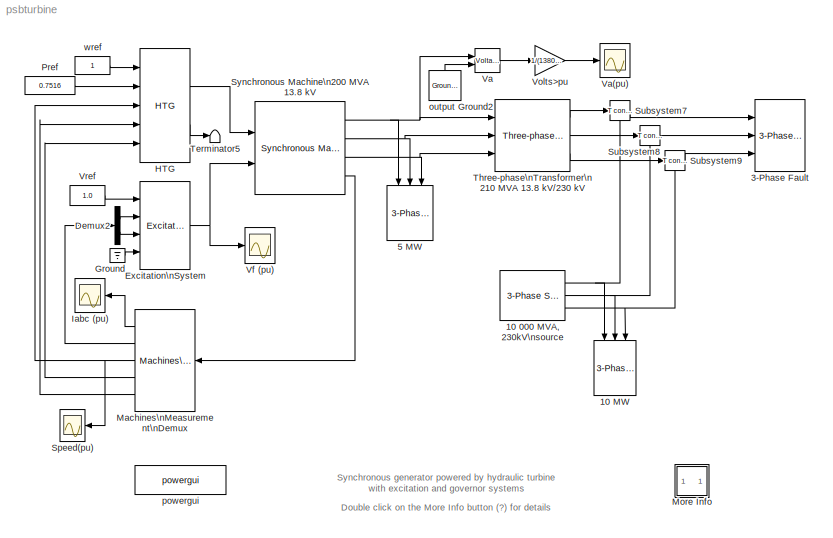
MODEL psbturbine
KIND model
BLOCK [Scope]  Iabc (pu)
  DataFormat = Array
  LimitDataPoints = off
  NumInputPorts = 1
  Ports = [1]
  TickLabels = on
  TimeRange = 0.2
  YMax = 6
BLOCK [Scope]  Speed(pu)
  DataFormat = Array
  LimitDataPoints = off
  NumInputPorts = 1
  Ports = [1]
  SaveName = Pm
  TickLabels = on
  TimeRange = 2
  YMax = 1.02
  YMin = 0.98
BLOCK [Reference] 10 000 MVA, 230kV\nsource  REF=powerlib2/Electrical\nSources/3-Phase Source
  F = 60
  InternalConnection = Yg
  L = 0.0140
  PSBOutputType = 111
  Phi = 0
  Ports = [0, 3]
  Psc = 10000e6
  R = 0.529
  RLoff = on
  SourceBlock = powerlib2/Electrical\nSources/3-Phase Source
  SourceType = 3-Phase Source
  Tag = PoWeRsYsTeMbLoCk
  V = 230e3
  Vbase = 230e3
  XRratio = 10
BLOCK [Reference] 10 MW  REF=powerlib2/Elements/3-Phase\nParallel RLC Load
  P3 = 10e6
  Ports = [3]
  QC3 = 0
  QL3 = 0
  SourceBlock = powerlib2/Elements/3-Phase\nParallel RLC Load
  SourceType = 3-phase parallel RLC load
  Vpp = 230e3
  fn = 60
BLOCK [Reference] 3-Phase Fault  REF=powerlib2/Elements/3-Phase Fault
  Cp = inf
  Ports = [3]
  Rdef = 1e-3
  Rp = inf
  Rt = 1e-3
  SourceBlock = powerlib2/Elements/3-Phase Fault
  SourceType = Three-Phase Fault
  Ts = 0
  comext = off
  init_statext = [1 1 0]
  mesure = None
  sa = on
  sb = on
  sc = on
  st = on
  sw_status = [1 0]
  sw_times = [ 0.1 0.2]
BLOCK [Reference] 5 MW  REF=powerlib2/Elements/3-Phase\nParallel RLC Load
  P3 = 5e6
  Ports = [3]
  QC3 = 0
  QL3 = 0
  SourceBlock = powerlib2/Elements/3-Phase\nParallel RLC Load
  SourceType = 3-phase parallel RLC load
  Vpp = 13.8e3
  fn = 60
BLOCK [Demux] Demux2
  Outputs = 2
  Ports = [1, 2]
BLOCK [Reference] Excitation\nSystem  REF=powerlib2/Machines/Excitation\nSystem
  Ports = [4, 1]
  SourceBlock = powerlib2/Machines/Excitation\nSystem
  SourceType = Excitation System
  damp = [ 0.001, 0.1 ]
  exc = [ 1, 0 ]
  lim = [ -11.5, 11.5, 0 ]
  reg = [ 300, 0.001 ]
  sat = [ 0, 0 ]
  tgr = [ 0, 0 ]
  tr = 20e-3
  v0 = [1,1.0]
BLOCK [Ground] Ground
BLOCK [Reference] HTG  REF=powerlib2/Machines/HTG
  Ports = [5, 2]
  SourceBlock = powerlib2/Machines/HTG
  SourceType = Hydraulic Turbine and Governor
  dref = 0
  gate = [  0.01  0.97518  -0.1  0.1 ]
  hyd = [  0  2.67  ]
  po = 1
  reg = [  0.05  1.163  0.105  0  0.01  ]
  sm = [ 10/3  0.07 ]
BLOCK [Reference] Machines\nMeasurement\nDemux  REF=powerlib2/Machines/Machines\nMeasurement\nDemux
  Ports = [1, 5]
  SourceBlock = powerlib2/Machines/Machines\nMeasurement\nDemux
  SourceType = Machine measurements
  asm1 = on
  asm10 = on
  asm11 = on
  asm2 = on
  asm3 = on
  asm4 = on
  asm5 = on
  asm6 = on
  asm7 = on
  asm8 = on
  asm9 = on
  lastType = 2
  machType = Synchronous
  pmsm1 = on
  pmsm2 = on
  pmsm3 = on
  pmsm4 = on
  pmsm5 = on
  pmsm6 = on
  sm1 = on
  sm10 = on
  sm11 = off
  sm115 = off
  sm12 = off
  sm13 = on
  sm14 = off
  sm2 = off
  sm3 = off
  sm4 = off
  sm5 = off
  sm6 = on
  sm7 = off
  sm8 = on
  sm9 = off
  ssm1 = on
  ssm2 = on
  ssm3 = on
  ssm4 = on
  ssm5 = on
  ssm6 = on
BLOCK [SubSystem] More Info
  MaskDisplay = disp('?')
  MaskIconFrame = on
  MaskIconOpaque = on
  MaskIconRotate = none
  MaskIconUnits = autoscale
  MinAlgLoopOccurrences = off
  Ports = []
  RTWSystemCode = Auto
  TreatAsAtomicUnit = off
BLOCK [Constant] Pref
  Value = 0.7516
BLOCK [Reference] Subsystem7  REF=powerlib2/Connectors/T connector
  PSBOutputType = 1
  Ports = [1, 1, 1]
  SourceBlock = powerlib2/Connectors/T connector
  SourceType = Bus Bar
  Tag = PoWeRsYsTeMbLoCk
BLOCK [Reference] Subsystem8  REF=powerlib2/Connectors/T connector
  PSBOutputType = 1
  Ports = [1, 1, 1]
  SourceBlock = powerlib2/Connectors/T connector
  SourceType = Bus Bar
  Tag = PoWeRsYsTeMbLoCk
BLOCK [Reference] Subsystem9  REF=powerlib2/Connectors/T connector
  PSBOutputType = 1
  Ports = [1, 1, 1]
  SourceBlock = powerlib2/Connectors/T connector
  SourceType = Bus Bar
  Tag = PoWeRsYsTeMbLoCk
BLOCK [Reference] Synchronous Machine\n200 MVA 13.8 kV  REF=powerlib2/Machines/Synchronous Machine\npu Standard
  LoadFlowParameters = [1 150000000 0 0]
  PSBOutputType = 1110
  Ports = [2, 4]
  SourceBlock = powerlib2/Machines/Synchronous Machine\npu Standard
  SourceType = Synchronous Machine
  Tag = PoWeRsYsTeMbLoCk
  dAxisT = Short-circuit
  iounits = 0.5
  qAxisT = Open-circuit
  rotorType = Salient-pole
  x1 = [ 200E6  13800   60 ]
  x2 = [ 1.305, 0.296, 0.252, 0.474, 0.243, 0.18 ]
  x2b = [ 31 32 33 34 35 36 37 ]
  x3 = [ 1.01, 0.053, 0.1 ]
  x3a = []
  x3b = []
  x3c = []
  x3d = []
  x3e = []
  x3f = []
  x3g = []
  x4 = 2.8544e-3
  x5 = [ 3.2 0  32]
  x6 = [0 0 0 0 0 0 0 0 1]
  x7 = off
  x8 = [0.6404,0.7127,0.8441,0.9214,0.9956,1.082,1.19,1.316,1.457;0.7,0.7698,0.8872,0.9466,0.9969,1.046,1.1,1.151,1.201]
BLOCK [Terminator] Terminator5
BLOCK [Reference] Three-phase\nTransformer\n210 MVA 13.8 kV//230 kV  REF=powerlib2/Elements/Three-phase\nTransformer\n(Two Windings)
  PSBOutputType = 1111
  Ports = [3, 3]
  SourceBlock = powerlib2/Elements/Three-phase\nTransformer\n(Two Windings)
  SourceType = Three-Phase Transformer (Two Windings)
  Tag = PoWeRsYsTeMbLoCk
  hyst = off
  initialslopes = [+1 +1 +1]
  lm = 500
  matfile = 'hysteresis'
  mesure = None
  nominal = [ 210e6 60 ]
  params1 = [ 13.8e3 0.0027  0.08]
  params2 = [ 230e3 0.0027 0.08]
  phi0 = [ 0.8 , -0.8 , 0.7 ]
  rmag = 500
  sat = [ 0,0  ;  0.005,1.2  ;  1.0,1.4 ]
  sif = off
  type1 = Delta (D1)
  type2 = Yg
  ynsat = off
BLOCK [Reference] Va  REF=powerlib2/Measurements/Voltage Measurement
  OutputType = Magnitude
  PSBOutputType = 0
  PSBequivalent = 0
  PhasorSimulation = off
  Ports = [2, 1]
  SourceBlock = powerlib2/Measurements/Voltage Measurement
  SourceType = Voltage Measurement
  Tag = PoWeRsYsTeMmEaSuReMeNt
BLOCK [Scope] Va(pu)
  DataFormat = Array
  LimitDataPoints = off
  NumInputPorts = 1
  Ports = [1]
  SaveName = vf
  TickLabels = on
  TimeRange = 0.2
  YMax = 1.25
  YMin = -1.25
  ZoomMode = yonly
BLOCK [Scope] Vf (pu)
  DataFormat = Array
  LimitDataPoints = off
  NumInputPorts = 1
  Ports = [1]
  SaveName = vf
  TickLabels = on
  TimeRange = 2
  YMax = 15
  YMin = -10
  ZoomMode = yonly
BLOCK [Gain] Volts>pu
  Gain = 1/(13800/sqrt(3)*sqrt(2))
BLOCK [Constant] Vref
  Value = 1.0
BLOCK [Reference] output Ground2  REF=powerlib2/Connectors/Ground (output)
  PSBOutputType = 1
  Ports = [0, 1]
  SourceBlock = powerlib2/Connectors/Ground (output)
  SourceType = Ground
  Tag = PoWeRsYsTeMbLoCk
BLOCK [Reference] powergui  REF=powerlib2/powergui
  DisplayStyle = off
  Frange = logspace(0,3,50)
  FreqAxis = off
  MaxFrequency = 1000
  Ports = []
  RmsSteady = 1
  SourceBlock = powerlib2/powergui
  SourceType = PSB option menu block
  StartTime = 0.0
  Ts = 0
  Xlog = off
  Ylog = off
  ZoomFFT = on
  cycles = 2
  display = off
  echomessages = off
  frequency = 60
  frequencyindice = 1
  frequencyindicesteady = 1
  fundamental = 60
  methode = off
  save = off
  variable = ZData
BLOCK [Constant] wref
ANNOTATION (root): Double click on the More Info button (?) for details
ANNOTATION (root): Synchronous generator powered by hydraulic turbine\n with excitation and governor systems
ANNOTATION More Info: 1
ANNOTATION More Info: 2
ANNOTATION More Info: 3
ANNOTATION More Info: 4
ANNOTATION More Info: A three-phase generator rated 200 MVA, 13.8 kV, 112.5 rpm is connected to a 230 kV, 10 000 MVA network through a Delta-Wye 210 MVA transformer. \nAt t = 0.1 s, a three-phase to ground fault occurs on the 230 kV bus. The fault is cleared after 6 cycles (t = 0.2 s). \nDuring this demo, you will initialize the system in order to start in steady-state with the generator supplying 150 MW of active powe...<+91ch>
ANNOTATION More Info: Circuit Description
ANNOTATION More Info: Demonstration
ANNOTATION More Info: In order to start the simulation in steady state with the HTG and excitation system connected, these two Simulink blocks must also be initialized\naccording to the values calculated by the load flow. This initialization is automatically performed when you execute the Load Flow, as long as you connect at\nthe Pm and Vf inputs of the machine either Constant blocks or regulation blocks from the machi...<+339ch>
ANNOTATION More Info: In order to start the simulation in steady-state you must initialize the synchronous machine for the desired load flow. \nOpen the Powergyu and select 'Load Flow and Machine Initialization' . A new window appears. The machine 'Bus type' should be already initialized as\n'PV generator', indicating that the load flow will be performed with the machine controlling the active power and its terminal vo...<+74ch>
ANNOTATION More Info: Load flow : Terminal voltage (Vrms) = 13800; Active Power = 150e6. Then press the 'Execute Load Flow' button.
ANNOTATION More Info: Louis-A. Dessaint and R. Champagne (Ecole de Technologie Superieure, Montreal)
ANNOTATION More Info: Once the load flow has been solved the phasors of AB and BC machine voltages as well as the currents flowing out of phases A and B are updated.\nThe machine reactive power, mechanical power and field voltage requested to supply the electrical power should also be displayed: \nQ = 3.4 Mvar; Pmec = 150.32 MW (0.7516 pu) ; field voltage Ef = 1.291 pu;
ANNOTATION More Info: Open the 4 scopes and restart the simulation. The simulation now starts in steady state.\nObserve that the terminal voltage Va is 1.0 p.u. at the beginning of the simulation. It falls to about 0.4 pu during the fault and returns to nominal \nquickly after the fault is cleared. This quick response in terminal voltage is due to the fact that the Excitation System output Vf can go as high as 11.5 pu\...<+329ch>
ANNOTATION More Info: Start Simulation and observe the three machine currents on the Iabc scope. If the 9 parameters defining initial conditions \nfor the Synchronous Machine are set at zero or not set correctly , the simulation will not start in steady state.
ANNOTATION More Info: This demonstration illustrates use of the synchronous machine associated with\nthe Hydraulic Turbine and Governor (HTG) and Excitation System blocks and use of\nthe Load Flow to initialize machine currents
NET 10 000 MVA, 230kV\nsource:1 -> 10 MW:1, Subsystem7:enable
NET 10 000 MVA, 230kV\nsource:2 -> 10 MW:2, Subsystem8:enable
NET 10 000 MVA, 230kV\nsource:3 -> 10 MW:3, Subsystem9:enable
LINE Demux2:1 -> Excitation\nSystem:2
LINE Demux2:2 -> Excitation\nSystem:3
NET Excitation\nSystem:1 -> Synchronous Machine\n200 MVA 13.8 kV:2, Vf (pu):1
LINE Ground:1 -> Excitation\nSystem:4
LINE HTG:1 -> Synchronous Machine\n200 MVA 13.8 kV:1
LINE HTG:2 -> Terminator5:1
LINE Machines\nMeasurement\nDemux:1 ->  Iabc (pu):1
LINE Machines\nMeasurement\nDemux:2 -> Demux2:1
NET Machines\nMeasurement\nDemux:3 ->  Speed(pu):1, HTG:3
LINE Machines\nMeasurement\nDemux:4 -> HTG:5
LINE Machines\nMeasurement\nDemux:5 -> HTG:4
LINE Pref:1 -> HTG:2
LINE Subsystem7:1 -> 3-Phase Fault:1
LINE Subsystem8:1 -> 3-Phase Fault:2
LINE Subsystem9:1 -> 3-Phase Fault:3
NET Synchronous Machine\n200 MVA 13.8 kV:1 -> 5 MW:1, Three-phase\nTransformer\n210 MVA 13.8 kV//230 kV:1, Va:1
NET Synchronous Machine\n200 MVA 13.8 kV:2 -> 5 MW:2, Three-phase\nTransformer\n210 MVA 13.8 kV//230 kV:2
NET Synchronous Machine\n200 MVA 13.8 kV:3 -> 5 MW:3, Three-phase\nTransformer\n210 MVA 13.8 kV//230 kV:3
LINE Synchronous Machine\n200 MVA 13.8 kV:4 -> Machines\nMeasurement\nDemux:1
LINE Three-phase\nTransformer\n210 MVA 13.8 kV//230 kV:1 -> Subsystem7:1
LINE Three-phase\nTransformer\n210 MVA 13.8 kV//230 kV:2 -> Subsystem8:1
LINE Three-phase\nTransformer\n210 MVA 13.8 kV//230 kV:3 -> Subsystem9:1
LINE Va:1 -> Volts>pu:1
LINE Volts>pu:1 -> Va(pu):1
LINE Vref:1 -> Excitation\nSystem:1
LINE output Ground2:1 -> Va:2
LINE wref:1 -> HTG:1
note: NET lines group one-source signal fan-out (src -> all destinations, sorted); 1:1 wires keep LINE
